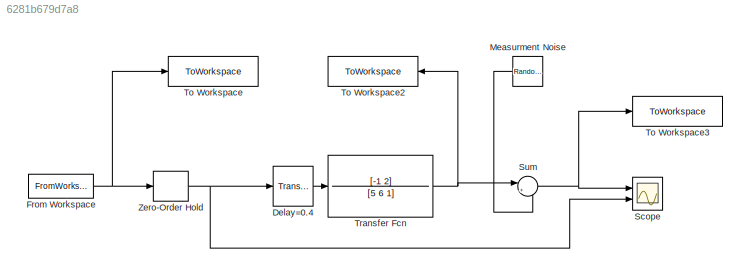
MODEL slx_6281b679d7a8
KIND model
CONFIG AbsTol = auto
CONFIG EnableMultiTasking = off
CONFIG FixedStep = auto
CONFIG MaxStep = auto
CONFIG MinStep = auto
CONFIG RelTol = 1e-3
CONFIG SampleTimeConstraint = Unconstrained
CONFIG Solver = VariableStepAuto
CONFIG SolverName = VariableStepAuto
CONFIG StartTime = 0.0
CONFIG StopTime = 511
WORKSPACE source: MATLAB code (in-file)
WORKSPACE Bmax = 0.2
WORKSPACE Range = [-1,1]
WORKSPACE N = 2555
WORKSPACE Ts = 0.2
WORKSPACE u1 = idinput(N,'prbs',[0,Bmax],Range)
WORKSPACE uin = [(0:1:length(u1)-1)'*Ts (u1)]
BLOCK [TransportDelay] Delay=0.4
  DelayTime = 0.4
  Ports = [1, 1]
BLOCK [FromWorkspace] From Workspace 
  SampleTime = 0.2
  VariableName = uin
  ZeroCross = on
BLOCK [RandomNumber] Measurment Noise
  SampleTime = 0.1
  Variance = 0.1
BLOCK [Scope] Scope 
  Floating = off
  NumInputPorts = 2
  Ports = [2]
  ScopeSpecificationString = Simulink.scopes.TimeScopeBlockCfg('CurrentConfiguration', extmgr.ConfigurationSet(extmgr.Configuration('Core','General UI',true),extmgr.Configuration('Core','Source UI',true),extmgr.Configuration('Sources','WiredSimulink',true),extmgr.Configuration('Visuals','Time Domain',true,'SerializedDisplays',{struct('MinYLimReal','-2.89706','MaxYLimReal','3.04777','YLabelReal','','MinYLimMag','0.00000','MaxY...<+1370ch>
BLOCK [Sum] Sum
  IconShape = round
  InputSameDT = off
  Inputs = |++
  OutDataTypeStr = Inherit: Inherit via internal rule
  Ports = [2, 1]
  SaturateOnIntegerOverflow = off
BLOCK [ToWorkspace] To  Workspace3
  FixptAsFi = on
  MaxDataPoints = inf
  Ports = [1]
  SampleTime = 0.2
  SaveFormat = Timeseries
  VariableName = ydata
BLOCK [ToWorkspace] To Workspace 
  FixptAsFi = on
  MaxDataPoints = inf
  Ports = [1]
  SampleTime = 0.2
  SaveFormat = Timeseries
  VariableName = udata
BLOCK [ToWorkspace] To Workspace2  
  FixptAsFi = on
  MaxDataPoints = inf
  Ports = [1]
  SampleTime = 0.2
  SaveFormat = Timeseries
  VariableName = ystardata
BLOCK [TransferFcn] Transfer Fcn 
  Denominator = [5 6 1]
  Numerator = [-1 2]
BLOCK [ZeroOrderHold] Zero-Order Hold 
  SampleTime = -1
LINE Delay=0.4:1 -> Transfer Fcn :1
NET From Workspace :1 -> To Workspace :1, Zero-Order Hold :1
LINE Measurment Noise:1 -> Sum:2
NET Sum:1 -> Scope :1, To  Workspace3:1
NET Transfer Fcn :1 -> Sum:1, To Workspace2  :1
NET Zero-Order Hold :1 -> Delay=0.4:1, Scope :2
note: NET lines group one-source signal fan-out (src -> all destinations, sorted); 1:1 wires keep LINE
